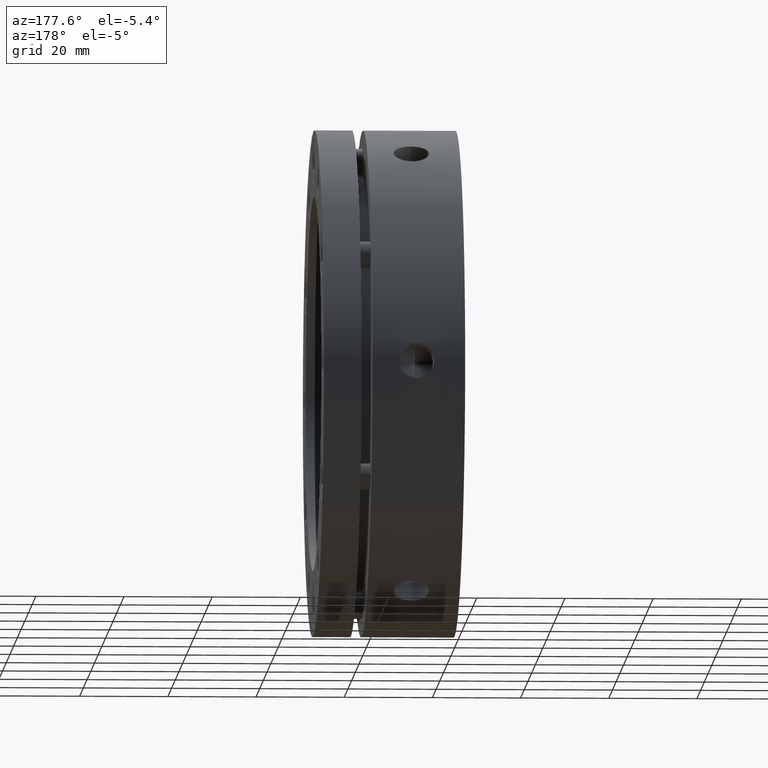
[diagram: clean part render]
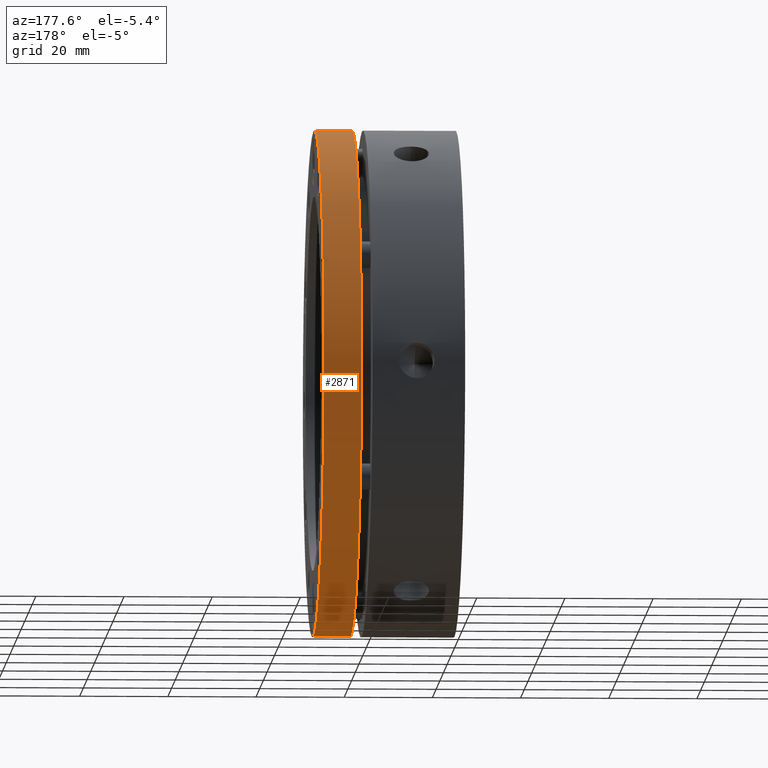
[diagram: same view with one face highlighted and labeled with its STEP entity id]
A machine part, auxiliary view. The second image highlights one B-rep face of the part: STEP entity #2871.
In plain terms, the highlighted cylindrical surface (partial cylindrical patch) has radius 57.5 mm, axis along (1, 0, 0).
Its self-contained STEP definition (entity closure, byte-faithful):
#10 = EDGE_LOOP ( 'NONE', ( #1256, #1255, #1254, #1253 ) ) ;
#423 = VERTEX_POINT ( 'NONE', #1805 ) ;
#424 = VERTEX_POINT ( 'NONE', #1806 ) ;
#434 = VERTEX_POINT ( 'NONE', #1816 ) ;
#444 = VERTEX_POINT ( 'NONE', #1826 ) ;
#704 = EDGE_CURVE ( 'NONE', #444, #434, #4325, .T. ) ;
#705 = EDGE_CURVE ( 'NONE', #434, #424, #4326, .T. ) ;
#706 = EDGE_CURVE ( 'NONE', #424, #423, #4329, .T. ) ;
#707 = EDGE_CURVE ( 'NONE', #444, #423, #4331, .T. ) ;
#753 = AXIS2_PLACEMENT_3D ( 'NONE', #2466, #2467, #2468 ) ;
#784 = AXIS2_PLACEMENT_3D ( 'NONE', #2469, #2470, #2471 ) ;
#1253 = ORIENTED_EDGE ( 'NONE', *, *, #707, .F. ) ;
#1254 = ORIENTED_EDGE ( 'NONE', *, *, #706, .T. ) ;
#1255 = ORIENTED_EDGE ( 'NONE', *, *, #705, .T. ) ;
#1256 = ORIENTED_EDGE ( 'NONE', *, *, #704, .T. ) ;
#1759 = AXIS2_PLACEMENT_3D ( 'NONE', #3433, #3431, #3429 ) ;
#1805 = CARTESIAN_POINT ( 'NONE',  ( 31.99999999999998600, 0.0000000000000000000, -57.50000000000000000 ) ) ;
#1806 = CARTESIAN_POINT ( 'NONE',  ( 31.99999999999998600, 7.041719095097280500E-015, 57.50000000000000000 ) ) ;
#1816 = CARTESIAN_POINT ( 'NONE',  ( 23.49999999999999300, 7.041719095097280500E-015, 57.50000000000000000 ) ) ;
#1826 = CARTESIAN_POINT ( 'NONE',  ( 23.49999999999999300, 0.0000000000000000000, -57.50000000000000000 ) ) ;
#2462 = DIRECTION ( 'NONE',  ( 1.000000000000000000, 0.0000000000000000000, 0.0000000000000000000 ) ) ;
#2463 = CARTESIAN_POINT ( 'NONE',  ( 15.99999999999998600, 0.0000000000000000000, -57.50000000000000000 ) ) ;
#2464 = DIRECTION ( 'NONE',  ( 1.000000000000000000, 0.0000000000000000000, 0.0000000000000000000 ) ) ;
#2465 = CARTESIAN_POINT ( 'NONE',  ( 15.99999999999998600, 7.041719095097280500E-015, 57.50000000000000000 ) ) ;
#2466 = CARTESIAN_POINT ( 'NONE',  ( 23.49999999999999300, 0.0000000000000000000, 0.0000000000000000000 ) ) ;
#2467 = DIRECTION ( 'NONE',  ( 1.000000000000000000, 0.0000000000000000000, 0.0000000000000000000 ) ) ;
#2468 = DIRECTION ( 'NONE',  ( 0.0000000000000000000, 0.0000000000000000000, -1.000000000000000000 ) ) ;
#2469 = CARTESIAN_POINT ( 'NONE',  ( 31.99999999999998600, 0.0000000000000000000, 0.0000000000000000000 ) ) ;
#2470 = DIRECTION ( 'NONE',  ( -1.000000000000000000, -0.0000000000000000000, -0.0000000000000000000 ) ) ;
#2471 = DIRECTION ( 'NONE',  ( 0.0000000000000000000, 0.0000000000000000000, -1.000000000000000000 ) ) ;
#2871 = ADVANCED_FACE ( 'NONE', ( #3766 ), #3775, .T. ) ;
#3429 = DIRECTION ( 'NONE',  ( 0.0000000000000000000, 0.0000000000000000000, -1.000000000000000000 ) ) ;
#3431 = DIRECTION ( 'NONE',  ( 1.000000000000000000, 0.0000000000000000000, 0.0000000000000000000 ) ) ;
#3433 = CARTESIAN_POINT ( 'NONE',  ( 15.99999999999998600, 0.0000000000000000000, 0.0000000000000000000 ) ) ;
#3766 = FACE_OUTER_BOUND ( 'NONE', #10, .T. ) ;
#3775 = CYLINDRICAL_SURFACE ( 'NONE', #1759, 57.50000000000000000 ) ;
#4325 = CIRCLE ( 'NONE', #753, 57.50000000000000000 ) ;
#4326 = LINE ( 'NONE', #2465, #4330 ) ;
#4329 = CIRCLE ( 'NONE', #784, 57.50000000000000000 ) ;
#4330 = VECTOR ( 'NONE', #2462, 1000.000000000000000 ) ;
#4331 = LINE ( 'NONE', #2463, #4333 ) ;
#4333 = VECTOR ( 'NONE', #2464, 1000.000000000000000 ) ;